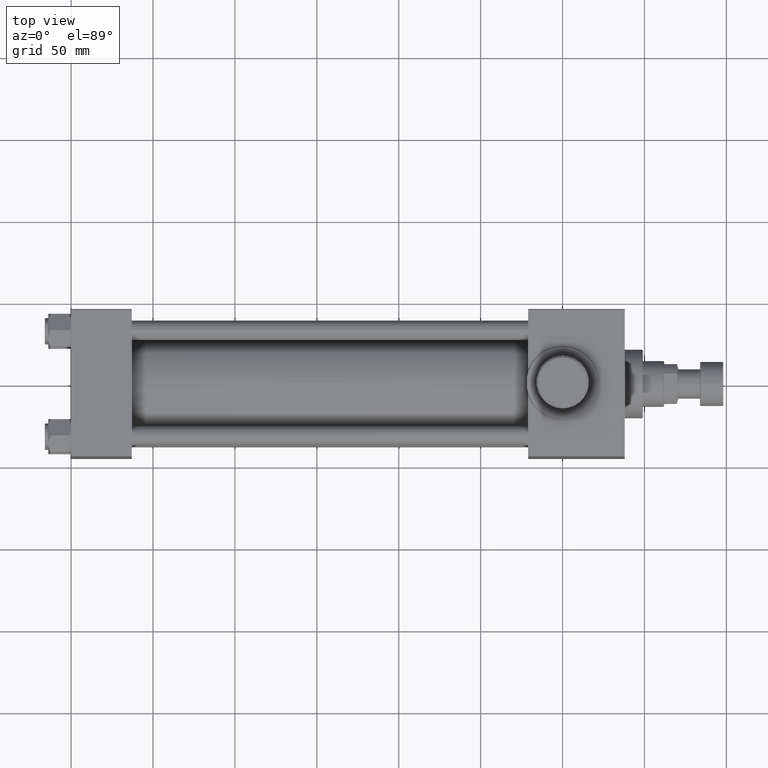
[diagram: clean part render]
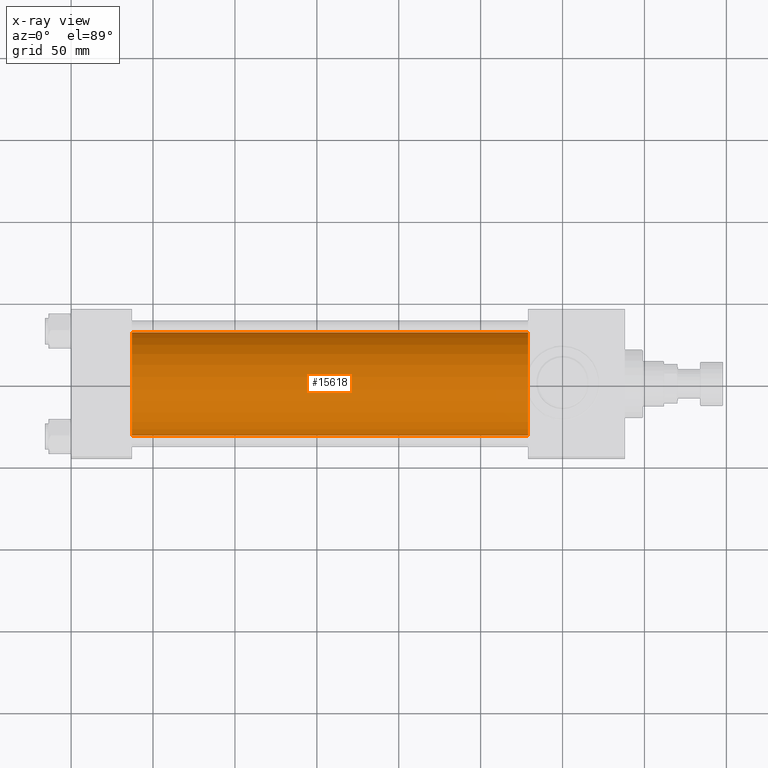
[diagram: x-ray — body ghosted, one internal face saturated and labeled with its STEP entity id]
A machine part, top view, then the same camera in x-ray: the body is ghosted and one INTERNAL B-rep face — a face not visible from any outside direction — is saturated and labeled: STEP entity #15618.
In plain terms, the highlighted cylindrical surface (partial cylindrical patch) has radius 31.5 mm, axis along (-1, -0, 0).
Its self-contained STEP definition (entity closure, byte-faithful):
#92 = DIRECTION ( 'NONE',  ( 1.000000000000000000, 0.000000000000000000, 0.000000000000000000 ) ) ;
#828 = CARTESIAN_POINT ( 'NONE',  ( 278.9999999999999432, -3.469446951953614189E-15, 31.50000000000000000 ) ) ;
#887 = CARTESIAN_POINT ( 'NONE',  ( 37.00000000000000000, 3.881904653605483521E-16, -31.50000000000000000 ) ) ;
#1523 = LINE ( 'NONE', #5822, #44272 ) ;
#1608 = DIRECTION ( 'NONE',  ( 0.000000000000000000, 0.000000000000000000, 1.000000000000000000 ) ) ;
#2489 = EDGE_CURVE ( 'NONE', #26677, #40903, #28143, .T. ) ;
#3691 = CARTESIAN_POINT ( 'NONE',  ( 278.9999999999999432, -3.469446951953614189E-15, 0.000000000000000000 ) ) ;
#5110 = DIRECTION ( 'NONE',  ( -1.000000000000000000, -0.000000000000000000, -0.000000000000000000 ) ) ;
#5434 = CYLINDRICAL_SURFACE ( 'NONE', #7267, 31.50000000000000000 ) ;
#5822 = CARTESIAN_POINT ( 'NONE',  ( 278.9999999999999432, -3.469446951953614189E-15, 31.50000000000000000 ) ) ;
#6508 = ORIENTED_EDGE ( 'NONE', *, *, #34681, .T. ) ;
#7267 = AXIS2_PLACEMENT_3D ( 'NONE', #41366, #19021, #1608 ) ;
#10335 = VERTEX_POINT ( 'NONE', #828 ) ;
#10585 = EDGE_LOOP ( 'NONE', ( #6508, #17506, #34118, #44569 ) ) ;
#13994 = CARTESIAN_POINT ( 'NONE',  ( 37.00000000000000000, -3.469446951953614189E-15, 31.50000000000000000 ) ) ;
#15618 = ADVANCED_FACE ( 'NONE', ( #15911 ), #5434, .F. ) ;
#15678 = DIRECTION ( 'NONE',  ( 1.000000000000000000, 0.000000000000000000, 0.000000000000000000 ) ) ;
#15911 = FACE_OUTER_BOUND ( 'NONE', #10585, .T. ) ;
#16774 = DIRECTION ( 'NONE',  ( -1.000000000000000000, -0.000000000000000000, -0.000000000000000000 ) ) ;
#17506 = ORIENTED_EDGE ( 'NONE', *, *, #17758, .T. ) ;
#17758 = EDGE_CURVE ( 'NONE', #21191, #40903, #46016, .T. ) ;
#19021 = DIRECTION ( 'NONE',  ( -1.000000000000000000, -0.000000000000000000, -0.000000000000000000 ) ) ;
#21191 = VERTEX_POINT ( 'NONE', #45674 ) ;
#26677 = VERTEX_POINT ( 'NONE', #13994 ) ;
#28143 = CIRCLE ( 'NONE', #31931, 31.50000000000000000 ) ;
#31522 = CARTESIAN_POINT ( 'NONE',  ( 278.9999999999999432, 3.881904653605483521E-16, -31.50000000000000000 ) ) ;
#31931 = AXIS2_PLACEMENT_3D ( 'NONE', #41597, #15678, #34227 ) ;
#34118 = ORIENTED_EDGE ( 'NONE', *, *, #2489, .F. ) ;
#34227 = DIRECTION ( 'NONE',  ( 0.000000000000000000, 0.000000000000000000, -1.000000000000000000 ) ) ;
#34681 = EDGE_CURVE ( 'NONE', #10335, #21191, #44981, .T. ) ;
#34951 = EDGE_CURVE ( 'NONE', #10335, #26677, #1523, .T. ) ;
#37380 = AXIS2_PLACEMENT_3D ( 'NONE', #3691, #92, #43181 ) ;
#40903 = VERTEX_POINT ( 'NONE', #887 ) ;
#41366 = CARTESIAN_POINT ( 'NONE',  ( 278.9999999999999432, -3.469446951953614189E-15, 0.000000000000000000 ) ) ;
#41597 = CARTESIAN_POINT ( 'NONE',  ( 37.00000000000000000, -3.469446951953614189E-15, 0.000000000000000000 ) ) ;
#43181 = DIRECTION ( 'NONE',  ( 0.000000000000000000, 0.000000000000000000, -1.000000000000000000 ) ) ;
#44272 = VECTOR ( 'NONE', #5110, 1000.000000000000000 ) ;
#44559 = VECTOR ( 'NONE', #16774, 1000.000000000000000 ) ;
#44569 = ORIENTED_EDGE ( 'NONE', *, *, #34951, .F. ) ;
#44981 = CIRCLE ( 'NONE', #37380, 31.50000000000000000 ) ;
#45674 = CARTESIAN_POINT ( 'NONE',  ( 278.9999999999999432, 3.881904653605483521E-16, -31.50000000000000000 ) ) ;
#46016 = LINE ( 'NONE', #31522, #44559 ) ;